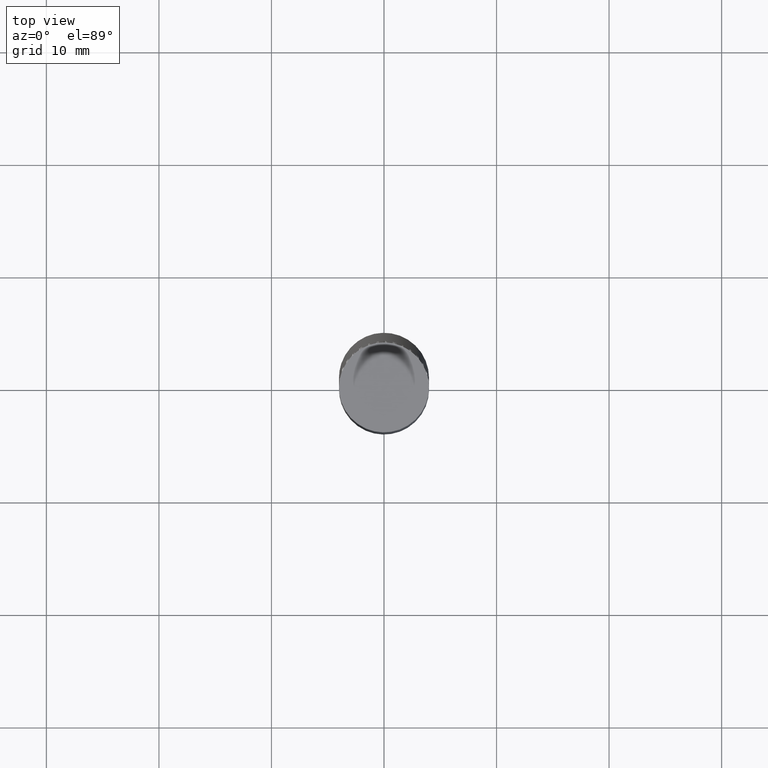
[diagram: clean part render]
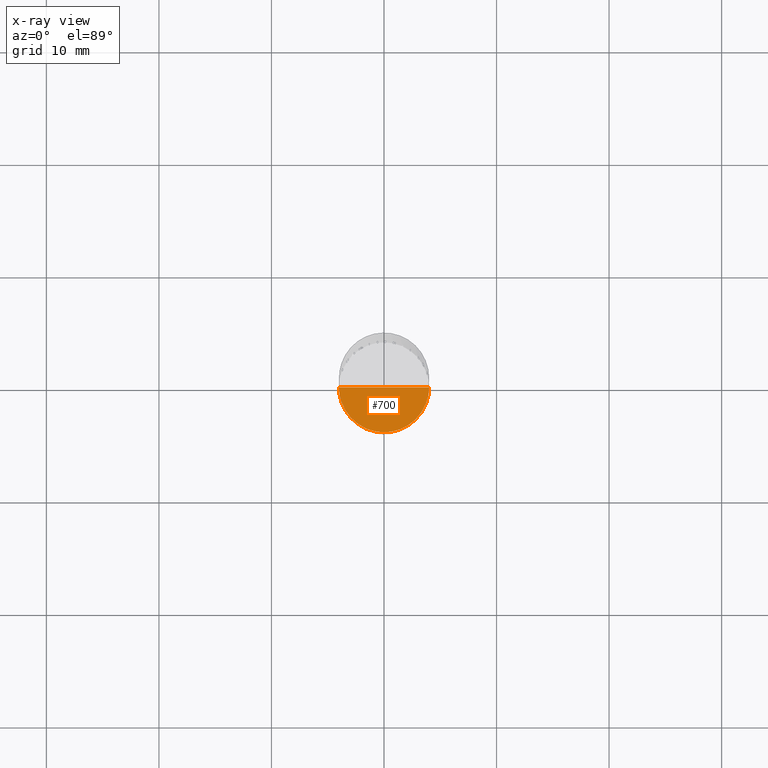
[diagram: x-ray — body ghosted, one internal face saturated and labeled with its STEP entity id]
A machine part, top view, then the same camera in x-ray: the body is ghosted and one INTERNAL B-rep face — a face not visible from any outside direction — is saturated and labeled: STEP entity #700.
In plain terms, the highlighted face is a freeform B-spline surface patch.
Its self-contained STEP definition (entity closure, byte-faithful):
#551=CARTESIAN_POINT('',(4.0,0.0,-5.0));
#555=CARTESIAN_POINT('',(-4.0,0.0,-5.0));
#556=CARTESIAN_POINT('',(0.0,0.0,-5.0));
#563=CARTESIAN_POINT('',(-4.0,-4.0,-5.0));
#564=CARTESIAN_POINT('',(0.0,-4.0,-5.0));
#565=CARTESIAN_POINT('',(4.0,-4.0,-5.0));
#685=(
BOUNDED_SURFACE()
B_SPLINE_SURFACE(1,2,(
(#555,#563,#564,#565,#551),
(#556,#556,#556,#556,#556)
), .UNSPECIFIED.,.F.,.F.,.F.)
B_SPLINE_SURFACE_WITH_KNOTS((2,2),(3,2,3),(
0.0,1.0),(
0.0,0.5,1.0), .UNSPECIFIED.)
GEOMETRIC_REPRESENTATION_ITEM()
RATIONAL_B_SPLINE_SURFACE(((1.0,0.707106781187,1.0,0.707106781187,1.0),
(1.0,0.707106781187,1.0,0.707106781187,1.0)
))
REPRESENTATION_ITEM('')
SURFACE()
);
#686=(
BOUNDED_CURVE()
B_SPLINE_CURVE(1,(#556,#551),.UNSPECIFIED.,.F.,.F.)
B_SPLINE_CURVE_WITH_KNOTS((2,2),
(0.0,1.0),.UNSPECIFIED.)
CURVE()
GEOMETRIC_REPRESENTATION_ITEM()
RATIONAL_B_SPLINE_CURVE((1.0,1.0))
REPRESENTATION_ITEM('')
);
#687=(
BOUNDED_CURVE()
B_SPLINE_CURVE(2,(#551,#565,#564,#563,#555),.UNSPECIFIED.,.F.,.F.)
B_SPLINE_CURVE_WITH_KNOTS((3,2,3),
(0.0,0.5,1.0),.UNSPECIFIED.)
CURVE()
GEOMETRIC_REPRESENTATION_ITEM()
RATIONAL_B_SPLINE_CURVE((1.0,0.707106781187,1.0,0.707106781187,1.0))
REPRESENTATION_ITEM('')
);
#688=(
BOUNDED_CURVE()
B_SPLINE_CURVE(1,(#555,#556),.UNSPECIFIED.,.F.,.F.)
B_SPLINE_CURVE_WITH_KNOTS((2,2),
(0.0,1.0),.UNSPECIFIED.)
CURVE()
GEOMETRIC_REPRESENTATION_ITEM()
RATIONAL_B_SPLINE_CURVE((1.0,1.0))
REPRESENTATION_ITEM('')
);
#689=VERTEX_POINT('',#551);
#690=VERTEX_POINT('',#555);
#691=VERTEX_POINT('',#556);
#692=EDGE_CURVE('',#691,#689,#686,.T.);
#693=EDGE_CURVE('',#689,#690,#687,.T.);
#694=EDGE_CURVE('',#690,#691,#688,.T.);
#695=ORIENTED_EDGE('',*,*,#692,.T.);
#696=ORIENTED_EDGE('',*,*,#693,.T.);
#697=ORIENTED_EDGE('',*,*,#694,.T.);
#698=EDGE_LOOP('',(#695,#696,#697));
#699=FACE_OUTER_BOUND('',#698,.T.);
#700=ADVANCED_FACE('',(#699),#685,.T.);